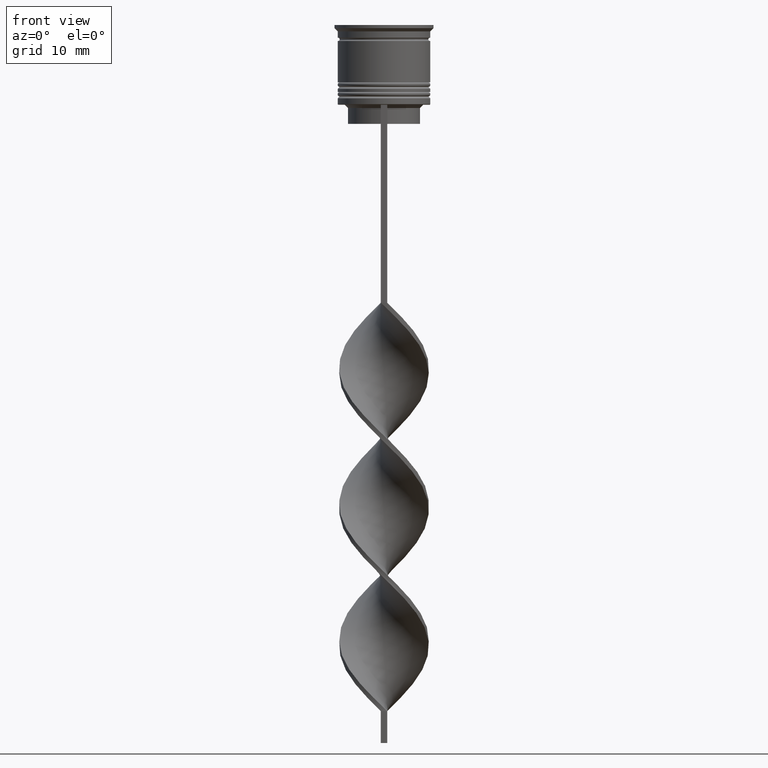
[diagram: clean part render]
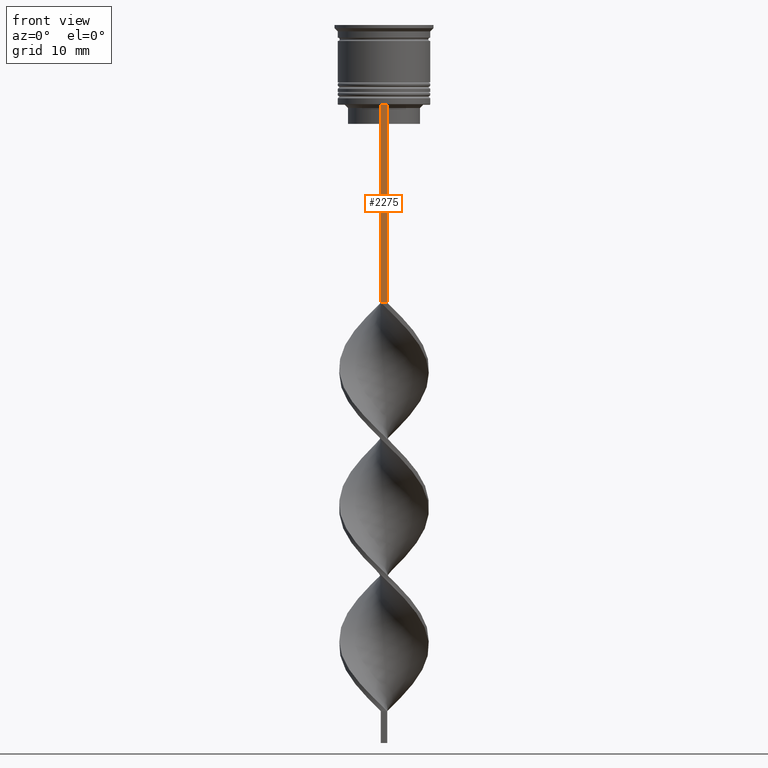
[diagram: same view with one face highlighted and labeled with its STEP entity id]
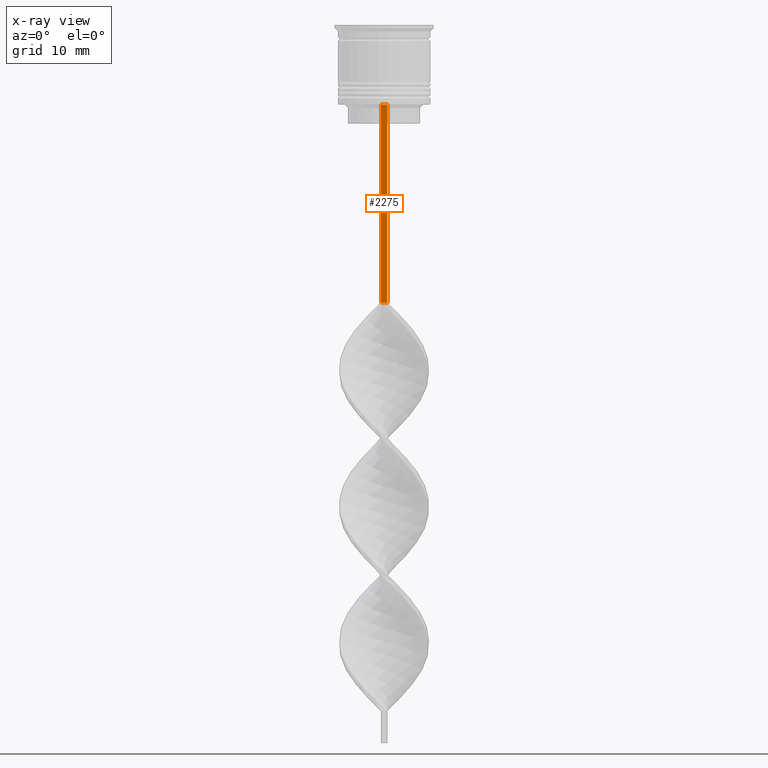
[diagram: x-ray of the same camera — body ghosted, the highlighted face saturated]
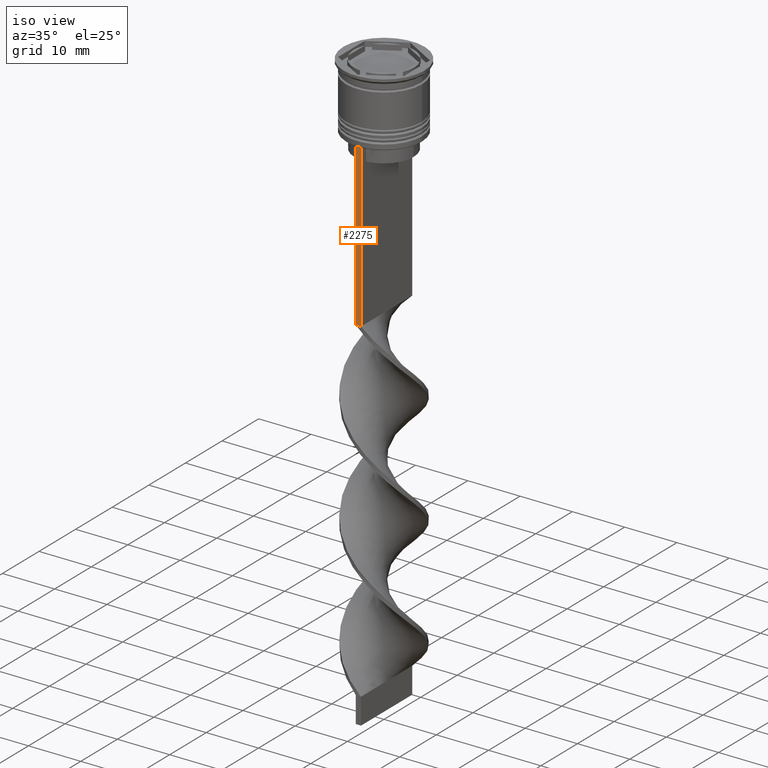
[diagram: same view with one face highlighted and labeled with its STEP entity id]
A machine part, front view. The second image highlights one B-rep face of the part: STEP entity #2275.
The next image is the same camera in x-ray: the body ghosted, the highlighted face saturated — about 0% of this face is hidden behind the body in this view.
A second angle (iso view) of the same face is appended — the face is thin or edge-on in the first view.
In plain terms, the highlighted planar face has unit normal (0, -1, -0).
Its self-contained STEP definition (entity closure, byte-faithful):
#87 = LINE ( 'NONE', #2564, #1988 ) ;
#172 = EDGE_LOOP ( 'NONE', ( #1731, #2534, #890, #788 ) ) ;
#233 = VECTOR ( 'NONE', #2291, 1000.000000000000000 ) ;
#263 = EDGE_CURVE ( 'NONE', #1687, #1807, #3421, .T. ) ;
#294 = DIRECTION ( 'NONE',  ( 0.000000000000000000, 0.000000000000000000, -1.000000000000000000 ) ) ;
#788 = ORIENTED_EDGE ( 'NONE', *, *, #1219, .F. ) ;
#890 = ORIENTED_EDGE ( 'NONE', *, *, #958, .F. ) ;
#951 = VECTOR ( 'NONE', #2591, 1000.000000000000000 ) ;
#958 = EDGE_CURVE ( 'NONE', #3254, #2937, #87, .T. ) ;
#1112 = PLANE ( 'NONE',  #3355 ) ;
#1204 = DIRECTION ( 'NONE',  ( -1.000000000000000000, 0.000000000000000000, 0.000000000000000000 ) ) ;
#1219 = EDGE_CURVE ( 'NONE', #1807, #3254, #1808, .T. ) ;
#1365 = CARTESIAN_POINT ( 'NONE',  ( -0.5000000000000000000, -6.999999999999997335, 1.535668847618198329 ) ) ;
#1485 = CARTESIAN_POINT ( 'NONE',  ( 0.5000000000000000000, -6.999999999999997335, 1.535668847618198329 ) ) ;
#1620 = LINE ( 'NONE', #1365, #2569 ) ;
#1639 = CARTESIAN_POINT ( 'NONE',  ( 0.5000000000000000000, -6.999999999999997335, -12.50000000000000000 ) ) ;
#1687 = VERTEX_POINT ( 'NONE', #1819 ) ;
#1731 = ORIENTED_EDGE ( 'NONE', *, *, #263, .F. ) ;
#1807 = VERTEX_POINT ( 'NONE', #1639 ) ;
#1808 = LINE ( 'NONE', #1485, #233 ) ;
#1819 = CARTESIAN_POINT ( 'NONE',  ( -0.5000000000000000000, -6.999999999999997335, -12.50000000000000000 ) ) ;
#1871 = FACE_OUTER_BOUND ( 'NONE', #172, .T. ) ;
#1988 = VECTOR ( 'NONE', #1204, 1000.000000000000000 ) ;
#2236 = EDGE_CURVE ( 'NONE', #1687, #2937, #1620, .T. ) ;
#2275 = ADVANCED_FACE ( 'NONE', ( #1871 ), #1112, .T. ) ;
#2291 = DIRECTION ( 'NONE',  ( 0.000000000000000000, 0.000000000000000000, -1.000000000000000000 ) ) ;
#2342 = CARTESIAN_POINT ( 'NONE',  ( 0.5000000000000000000, -6.999999999999997335, -12.50000000000000000 ) ) ;
#2361 = CARTESIAN_POINT ( 'NONE',  ( -0.5000000000000000000, -6.999999999999997335, -43.50000000000000000 ) ) ;
#2534 = ORIENTED_EDGE ( 'NONE', *, *, #2236, .T. ) ;
#2564 = CARTESIAN_POINT ( 'NONE',  ( 0.5000000000000000000, -6.999999999999997335, -43.50000000000000000 ) ) ;
#2569 = VECTOR ( 'NONE', #3006, 1000.000000000000000 ) ;
#2591 = DIRECTION ( 'NONE',  ( 1.000000000000000000, 0.000000000000000000, 0.000000000000000000 ) ) ;
#2937 = VERTEX_POINT ( 'NONE', #2361 ) ;
#2952 = DIRECTION ( 'NONE',  ( 0.000000000000000000, -1.000000000000000000, -0.000000000000000000 ) ) ;
#3006 = DIRECTION ( 'NONE',  ( 0.000000000000000000, 0.000000000000000000, -1.000000000000000000 ) ) ;
#3126 = CARTESIAN_POINT ( 'NONE',  ( 0.5000000000000000000, -6.999999999999997335, -43.50000000000000000 ) ) ;
#3254 = VERTEX_POINT ( 'NONE', #3126 ) ;
#3255 = CARTESIAN_POINT ( 'NONE',  ( 0.5000000000000000000, -6.999999999999997335, 1.535668847618198329 ) ) ;
#3355 = AXIS2_PLACEMENT_3D ( 'NONE', #3255, #2952, #294 ) ;
#3421 = LINE ( 'NONE', #2342, #951 ) ;